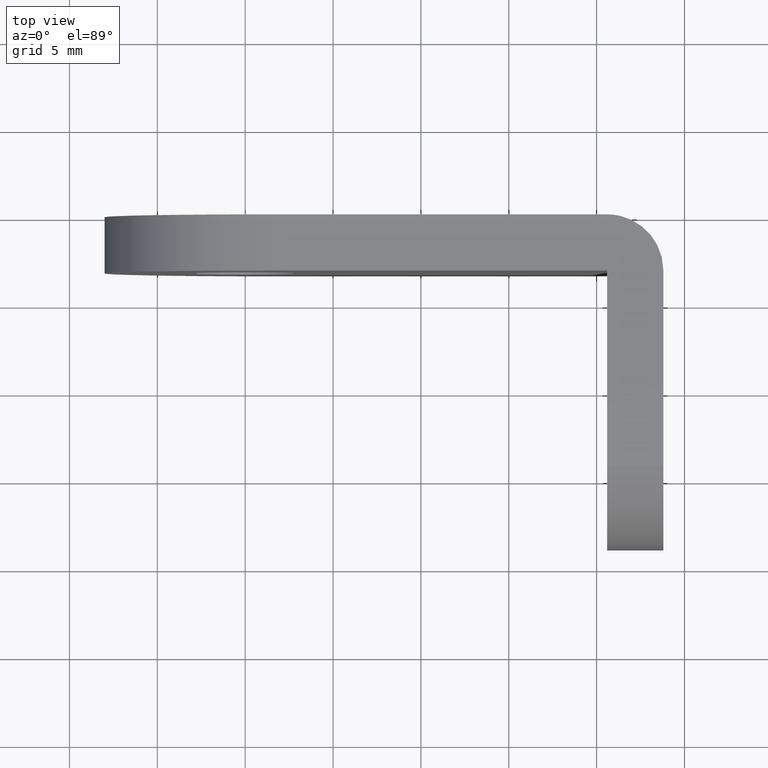
[diagram: clean part render]
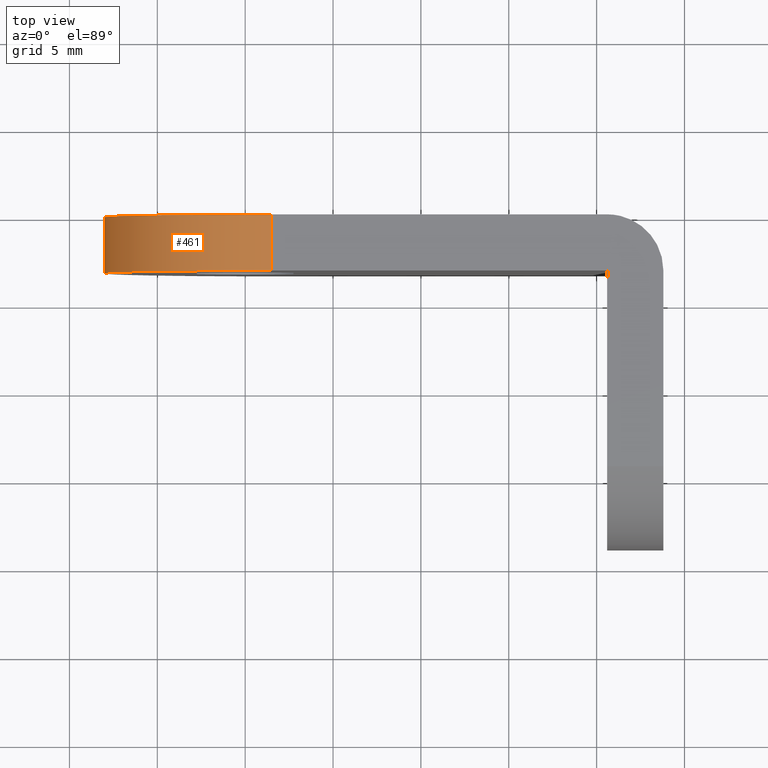
[diagram: same view with one face highlighted and labeled with its STEP entity id]
A machine part, top view. The second image highlights one B-rep face of the part: STEP entity #461.
In plain terms, the highlighted face is a freeform B-spline surface patch.
Its self-contained STEP definition (entity closure, byte-faithful):
#223=CARTESIAN_POINT('',(1.500000000000000,0.0,9.500000000000000));
#224=VERTEX_POINT('',#223);
#231=CARTESIAN_POINT('',(1.500000000000000,0.0,-9.500000000000000));
#232=VERTEX_POINT('',#231);
#238=CARTESIAN_POINT('',(1.500000000000000,0.0,9.500000000000000));
#239=CARTESIAN_POINT('',(-8.0,0.0,9.500000000000000));
#240=CARTESIAN_POINT('',(-8.0,0.0,0.0));
#241=CARTESIAN_POINT('',(-8.0,0.0,-9.500000000000000));
#242=CARTESIAN_POINT('',(1.500000000000000,0.0,-9.500000000000000));
#250=(BOUNDED_CURVE()B_SPLINE_CURVE(2,(#238,#239,#240,#241,#242),.UNSPECIFIED.,.F.,.U.)B_SPLINE_CURVE_WITH_KNOTS((3,2,3),(0.0,0.500000000000000,1.0),.UNSPECIFIED.)CURVE()GEOMETRIC_REPRESENTATION_ITEM()RATIONAL_B_SPLINE_CURVE((1.0,0.707106781186548,1.0,0.707106781186548,1.0))REPRESENTATION_ITEM(''));
#251=EDGE_CURVE('',#224,#232,#250,.T.);
#311=CARTESIAN_POINT('',(1.500000000000000,-3.199999999999760,9.500000000000000));
#312=VERTEX_POINT('',#311);
#318=CARTESIAN_POINT('',(1.500000000000000,-3.199999999999760,-9.500000000000000));
#319=VERTEX_POINT('',#318);
#320=CARTESIAN_POINT('',(1.500000000000000,-3.199999999999760,9.500000000000000));
#321=CARTESIAN_POINT('',(-8.0,-3.199999999999759,9.500000000000000));
#322=CARTESIAN_POINT('',(-8.0,-3.199999999999760,0.0));
#323=CARTESIAN_POINT('',(-8.0,-3.199999999999759,-9.500000000000000));
#324=CARTESIAN_POINT('',(1.500000000000000,-3.199999999999760,-9.500000000000000));
#332=(BOUNDED_CURVE()B_SPLINE_CURVE(2,(#320,#321,#322,#323,#324),.UNSPECIFIED.,.F.,.U.)B_SPLINE_CURVE_WITH_KNOTS((3,2,3),(0.0,0.500000000000000,1.0),.UNSPECIFIED.)CURVE()GEOMETRIC_REPRESENTATION_ITEM()RATIONAL_B_SPLINE_CURVE((1.0,0.707106781186548,1.0,0.707106781186548,1.0))REPRESENTATION_ITEM(''));
#333=EDGE_CURVE('',#312,#319,#332,.T.);
#425=CARTESIAN_POINT('',(1.500000000000000,-3.199999999999760,-9.500000000000000));
#426=CARTESIAN_POINT('',(1.500000000000000,0.0,-9.500000000000000));
#427=QUASI_UNIFORM_CURVE('',1,(#425,#426),.UNSPECIFIED.,.F.,.U.);
#428=EDGE_CURVE('',#319,#232,#427,.T.);
#433=CARTESIAN_POINT('',(1.748681008924809,-3.279999999999754,9.496744587267790));
#434=CARTESIAN_POINT('',(1.748681008924809,0.081999999999994,9.496744587267790));
#435=CARTESIAN_POINT('',(-8.171747809252530,-3.279999999999755,9.756520158233297));
#436=CARTESIAN_POINT('',(-8.171747809252530,0.081999999999994,9.756520158233297));
#437=CARTESIAN_POINT('',(-7.998553103985711,-3.279999999999754,-0.165797861154178));
#438=CARTESIAN_POINT('',(-7.998553103985711,0.081999999999994,-0.165797861154178));
#439=CARTESIAN_POINT('',(-7.825358398718894,-3.279999999999755,-10.088115880541652));
#440=CARTESIAN_POINT('',(-7.825358398718894,0.081999999999994,-10.088115880541652));
#441=CARTESIAN_POINT('',(2.079961125581123,-3.279999999999754,-9.482280585007731));
#442=CARTESIAN_POINT('',(2.079961125581123,0.081999999999994,-9.482280585007731));
#450=(BOUNDED_SURFACE()B_SPLINE_SURFACE(1,2,((#433,#435,#437,#439,#441),(#434,#436,#438,#440,#442)),.UNSPECIFIED.,.F.,.F.,.U.)B_SPLINE_SURFACE_WITH_KNOTS((2,2),(3,2,3),(0.0,3.361999999999748),(0.0,16.227974395134680,32.455948790269368),.UNSPECIFIED.)GEOMETRIC_REPRESENTATION_ITEM()RATIONAL_B_SPLINE_SURFACE(((1.0,0.691513055782269,1.0,0.691513055782269,1.0),(1.0,0.691513055782269,1.0,0.691513055782269,1.0)))REPRESENTATION_ITEM('')SURFACE());
#451=ORIENTED_EDGE('',*,*,#251,.T.);
#452=ORIENTED_EDGE('',*,*,#428,.F.);
#453=ORIENTED_EDGE('',*,*,#333,.F.);
#454=CARTESIAN_POINT('',(1.500000000000000,-3.199999999999760,9.500000000000000));
#455=CARTESIAN_POINT('',(1.500000000000000,0.0,9.500000000000000));
#456=QUASI_UNIFORM_CURVE('',1,(#454,#455),.UNSPECIFIED.,.F.,.U.);
#457=EDGE_CURVE('',#312,#224,#456,.T.);
#458=ORIENTED_EDGE('',*,*,#457,.T.);
#459=EDGE_LOOP('',(#451,#452,#453,#458));
#460=FACE_OUTER_BOUND('',#459,.T.);
#461=ADVANCED_FACE('',(#460),#450,.T.);